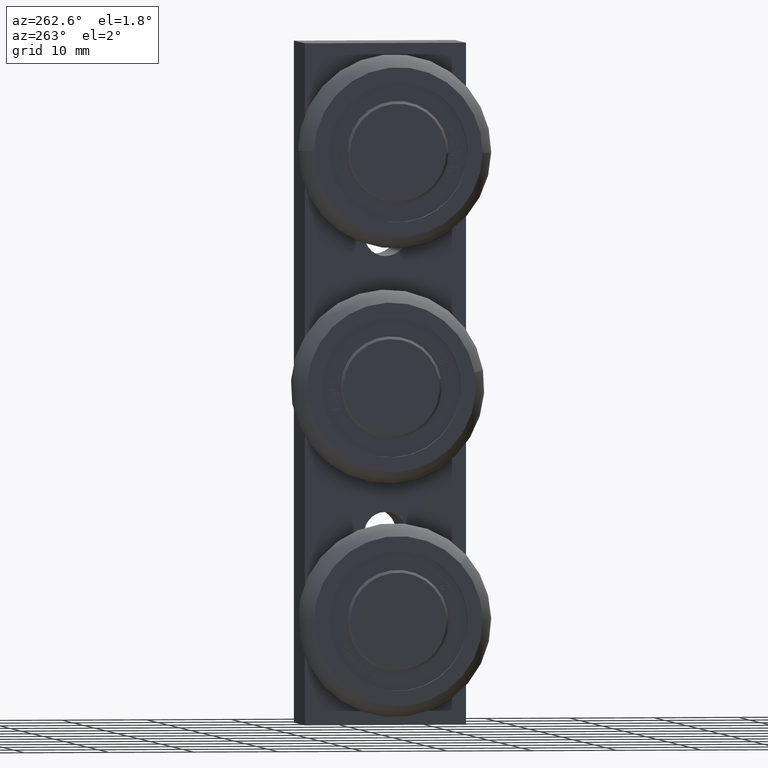
[diagram: clean part render]
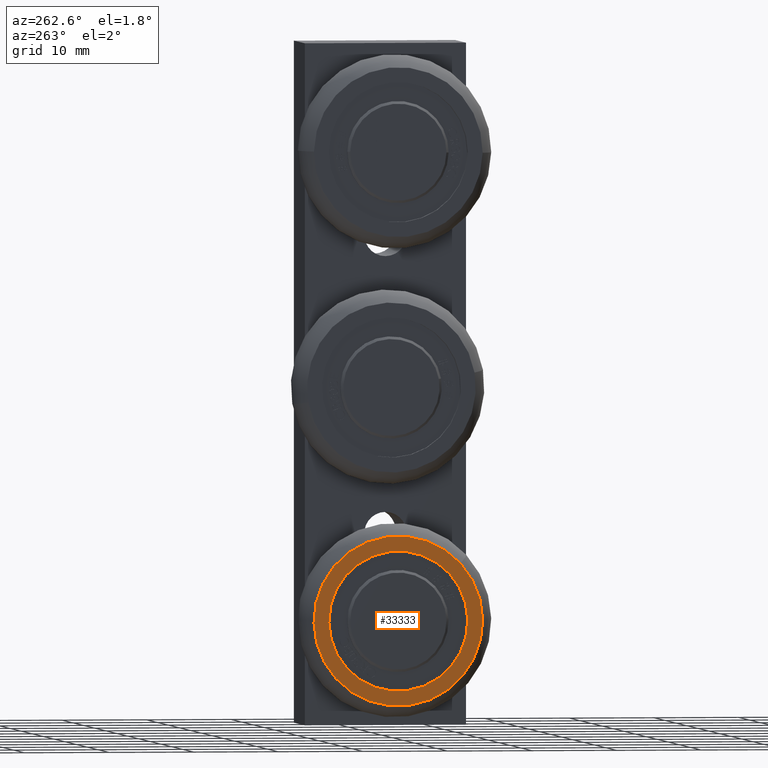
[diagram: same view with one face highlighted and labeled with its STEP entity id]
A machine part, auxiliary view. The second image highlights one B-rep face of the part: STEP entity #33333.
In plain terms, the highlighted planar face has unit normal (1, 0, 0).
Its self-contained STEP definition (entity closure, byte-faithful):
#1296 = CARTESIAN_POINT ( 'NONE',  ( 0.2559055115368674693, 0.2297395819809626982, -3.663224152552242430 ) ) ;
#2840 = CARTESIAN_POINT ( 'NONE',  ( 0.2559055115368674693, -0.008661417322834357585, -3.444881889763779625 ) ) ;
#4807 = AXIS2_PLACEMENT_3D ( 'NONE', #6416, #15695, #45162 ) ;
#6042 = ORIENTED_EDGE ( 'NONE', *, *, #38838, .F. ) ;
#6216 = EDGE_CURVE ( 'NONE', #27852, #12596, #46298, .T. ) ;
#6294 = AXIS2_PLACEMENT_3D ( 'NONE', #57988, #28456, #14070 ) ;
#6416 = CARTESIAN_POINT ( 'NONE',  ( 0.2559055115368674693, -0.008661417322834357585, -3.444881889763779625 ) ) ;
#7861 = VERTEX_POINT ( 'NONE', #39037 ) ;
#9834 = CARTESIAN_POINT ( 'NONE',  ( 0.2559055115368674693, 0.2808229160557478843, -3.710009404230043994 ) ) ;
#10887 = CIRCLE ( 'NONE', #4807, 0.3925478037114737417 ) ;
#12076 = DIRECTION ( 'NONE',  ( 0.000000000000000000, -0.7374498867183977291, 0.6754018541424227084 ) ) ;
#12393 = EDGE_LOOP ( 'NONE', ( #34822, #34521 ) ) ;
#12596 = VERTEX_POINT ( 'NONE', #58552 ) ;
#13348 = DIRECTION ( 'NONE',  ( -1.000000000000000000, -4.122974739858164500E-35, -5.538395266801810043E-17 ) ) ;
#14070 = DIRECTION ( 'NONE',  ( 0.000000000000000000, -0.7374498867183979511, 0.6754018541424224864 ) ) ;
#15343 = DIRECTION ( 'NONE',  ( -1.000000000000000000, -4.122974739858164500E-35, -5.538395266801810043E-17 ) ) ;
#15695 = DIRECTION ( 'NONE',  ( -1.000000000000000000, -4.122974739858164500E-35, -5.538395266801810043E-17 ) ) ;
#15755 = DIRECTION ( 'NONE',  ( -4.093669218709892916E-17, 0.7374498867183978401, -0.6754018541424225974 ) ) ;
#18634 = AXIS2_PLACEMENT_3D ( 'NONE', #45427, #15343, #49018 ) ;
#19582 = PLANE ( 'NONE',  #40442 ) ;
#27852 = VERTEX_POINT ( 'NONE', #1296 ) ;
#28255 = FACE_OUTER_BOUND ( 'NONE', #12393, .T. ) ;
#28456 = DIRECTION ( 'NONE',  ( -1.000000000000000000, -4.122974739858164500E-35, -5.538395266801810043E-17 ) ) ;
#33333 = ADVANCED_FACE ( 'NONE', ( #43317, #28255 ), #19582, .F. ) ;
#34521 = ORIENTED_EDGE ( 'NONE', *, *, #59925, .T. ) ;
#34822 = ORIENTED_EDGE ( 'NONE', *, *, #48810, .T. ) ;
#36694 = CIRCLE ( 'NONE', #45969, 0.3925478037114737417 ) ;
#38838 = EDGE_CURVE ( 'NONE', #12596, #27852, #46237, .T. ) ;
#39037 = CARTESIAN_POINT ( 'NONE',  ( 0.2559055115368674693, -0.2981457507014164121, -3.179754375297514812 ) ) ;
#40442 = AXIS2_PLACEMENT_3D ( 'NONE', #54251, #44910, #15755 ) ;
#43317 = FACE_BOUND ( 'NONE', #56186, .T. ) ;
#44910 = DIRECTION ( 'NONE',  ( 1.000000000000000000, 5.777412239459151569E-17, 2.470866518668935535E-18 ) ) ;
#45162 = DIRECTION ( 'NONE',  ( 0.000000000000000000, -0.7374498867183977291, 0.6754018541424227084 ) ) ;
#45427 = CARTESIAN_POINT ( 'NONE',  ( 0.2559055115368674693, -0.008661417322834357585, -3.444881889763779625 ) ) ;
#45969 = AXIS2_PLACEMENT_3D ( 'NONE', #2840, #13348, #12076 ) ;
#46237 = CIRCLE ( 'NONE', #6294, 0.3232775590551180689 ) ;
#46298 = CIRCLE ( 'NONE', #18634, 0.3232775590551180689 ) ;
#48810 = EDGE_CURVE ( 'NONE', #7861, #57246, #36694, .T. ) ;
#49018 = DIRECTION ( 'NONE',  ( 0.000000000000000000, -0.7374498867183979511, 0.6754018541424224864 ) ) ;
#54251 = CARTESIAN_POINT ( 'NONE',  ( 0.2559055115368674693, 0.2096808454656289566, -3.206480890459982636 ) ) ;
#56186 = EDGE_LOOP ( 'NONE', ( #6042, #62629 ) ) ;
#57246 = VERTEX_POINT ( 'NONE', #9834 ) ;
#57988 = CARTESIAN_POINT ( 'NONE',  ( 0.2559055115368674693, -0.008661417322834357585, -3.444881889763779625 ) ) ;
#58552 = CARTESIAN_POINT ( 'NONE',  ( 0.2559055115368674693, -0.2470624166266313648, -3.226539626975316377 ) ) ;
#59925 = EDGE_CURVE ( 'NONE', #57246, #7861, #10887, .T. ) ;
#62629 = ORIENTED_EDGE ( 'NONE', *, *, #6216, .F. ) ;